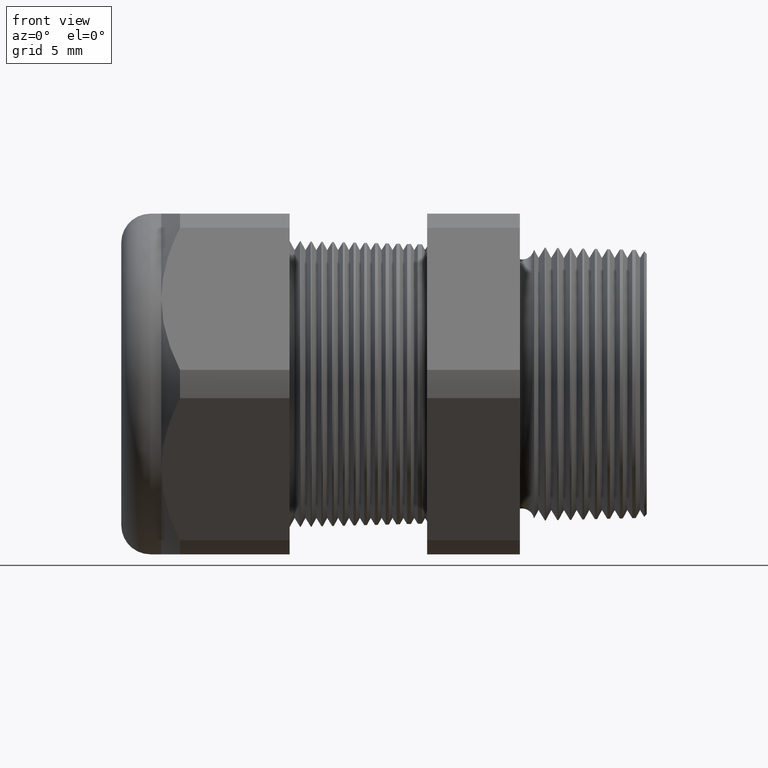
[diagram: clean part render]
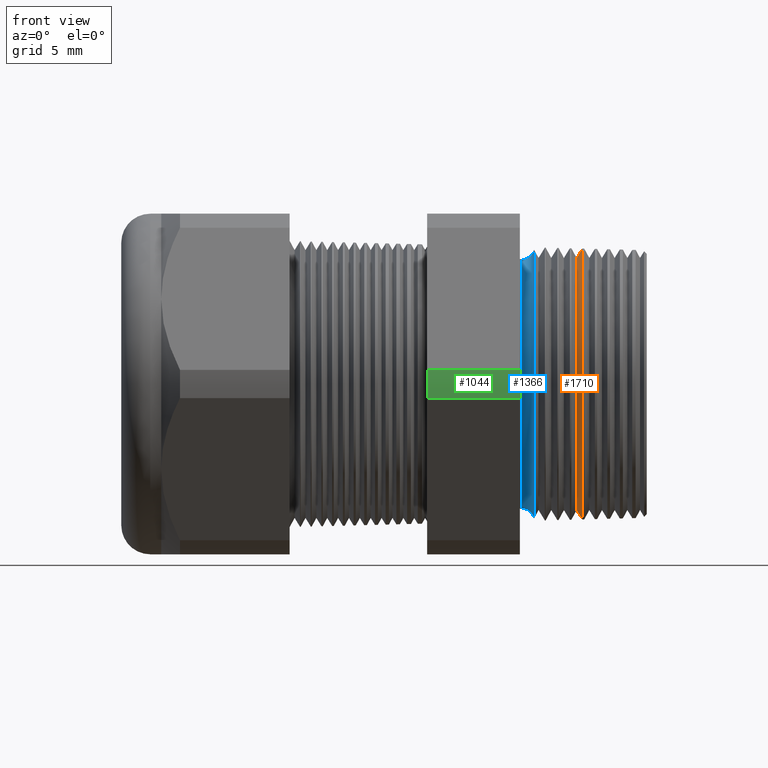
[diagram: same view with three faces highlighted in distinct colors, each labeled with its STEP entity id]
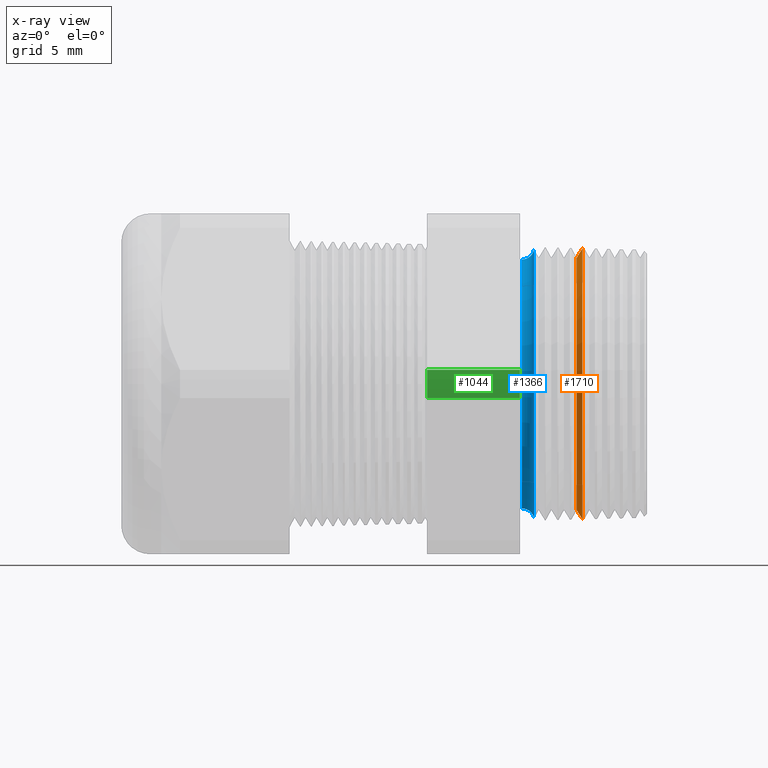
[diagram: x-ray of the same camera — body ghosted, the three highlighted faces saturated]
A machine part, front view with three faces highlighted in distinct colors.
The next image is the same camera in x-ray (body ghosted, the three faces saturated) — at least one of them is partly hidden behind the body in this view.
Their STEP definitions:

[orange] entity #1710 — the highlighted conical surface has half-angle 58.5 deg.
#645 = EDGE_CURVE ( 'NONE', #5212, #5201, #3002, .T. ) ;
#1656 = EDGE_CURVE ( 'NONE', #5144, #5205, #4780, .T. ) ;
#1710 = ADVANCED_FACE ( 'NONE', ( #4844 ), #4843, .T. ) ;
#1711 = EDGE_LOOP ( 'NONE', ( #1712, #1713, #1714, #1715 ) ) ;
#1712 = ORIENTED_EDGE ( 'NONE', *, *, #5224, .F. ) ;
#1713 = ORIENTED_EDGE ( 'NONE', *, *, #1656, .T. ) ;
#1714 = ORIENTED_EDGE ( 'NONE', *, *, #5194, .T. ) ;
#1715 = ORIENTED_EDGE ( 'NONE', *, *, #645, .T. ) ;
#2998 = DIRECTION ( 'NONE',  ( 0.0000000000000000000, 0.0000000000000000000, -1.000000000000000000 ) ) ;
#2999 = DIRECTION ( 'NONE',  ( -1.000000000000000000, 0.0000000000000000000, 0.0000000000000000000 ) ) ;
#3000 = CARTESIAN_POINT ( 'NONE',  ( -0.1375819195166211300, 0.0000000000000000000, 0.0000000000000000000 ) ) ;
#3001 = AXIS2_PLACEMENT_3D ( 'NONE', #3000, #2999, #2998 ) ;
#3002 = CIRCLE ( 'NONE', #3001, 0.3738456731111898200 ) ;
#4777 = DIRECTION ( 'NONE',  ( 0.0000000000000000000, 0.0000000000000000000, -1.000000000000000000 ) ) ;
#4778 = DIRECTION ( 'NONE',  ( 1.000000000000000000, 0.0000000000000000000, 0.0000000000000000000 ) ) ;
#4779 = AXIS2_PLACEMENT_3D ( 'NONE', #4784, #4778, #4777 ) ;
#4780 = CIRCLE ( 'NONE', #4779, 0.3479174816500060800 ) ;
#4784 = CARTESIAN_POINT ( 'NONE',  ( -0.1534707356790751300, 0.0000000000000000000, 0.0000000000000000000 ) ) ;
#4839 = DIRECTION ( 'NONE',  ( 0.0000000000000000000, 0.0000000000000000000, -1.000000000000000000 ) ) ;
#4840 = DIRECTION ( 'NONE',  ( 1.000000000000000000, 0.0000000000000000000, 0.0000000000000000000 ) ) ;
#4841 = AXIS2_PLACEMENT_3D ( 'NONE', #4849, #4840, #4839 ) ;
#4843 = CONICAL_SURFACE ( 'NONE', #4841, 0.3479174816500060800, 1.021017612416698700 ) ;
#4844 = FACE_OUTER_BOUND ( 'NONE', #1711, .T. ) ;
#4849 = CARTESIAN_POINT ( 'NONE',  ( -0.1534707356790751300, 0.0000000000000000000, 0.0000000000000000000 ) ) ;
#4906 = CARTESIAN_POINT ( 'NONE',  ( -0.1534707356790751300, 0.0000000000000000000, 0.3479174816500060800 ) ) ;
#4948 = LINE ( 'NONE', #5007, #5006 ) ;
#4985 = CARTESIAN_POINT ( 'NONE',  ( -0.1534707356790751300, 4.424398919375191800E-017, -0.3479174816500060800 ) ) ;
#4992 = CARTESIAN_POINT ( 'NONE',  ( -0.1375819195166211300, 0.0000000000000000000, 0.3738456731111898200 ) ) ;
#5005 = DIRECTION ( 'NONE',  ( 0.5224985647159352500, 0.0000000000000000000, -0.8526401643541005000 ) ) ;
#5006 = VECTOR ( 'NONE', #5005, 39.37007874015748900 ) ;
#5007 = CARTESIAN_POINT ( 'NONE',  ( -0.1534707356790751300, 0.0000000000000000000, -0.3479174816500060800 ) ) ;
#5036 = CARTESIAN_POINT ( 'NONE',  ( -0.1375819195166211300, 4.578289069507063600E-017, -0.3738456731111898200 ) ) ;
#5054 = DIRECTION ( 'NONE',  ( 0.5224985647159352500, 1.044183048100722500E-016, 0.8526401643541005000 ) ) ;
#5055 = VECTOR ( 'NONE', #5054, 39.37007874015748900 ) ;
#5056 = CARTESIAN_POINT ( 'NONE',  ( -0.1534707356790751300, 4.260760302700879300E-017, 0.3479174816500060800 ) ) ;
#5057 = LINE ( 'NONE', #5056, #5055 ) ;
#5144 = VERTEX_POINT ( 'NONE', #4906 ) ;
#5194 = EDGE_CURVE ( 'NONE', #5205, #5212, #4948, .T. ) ;
#5201 = VERTEX_POINT ( 'NONE', #4992 ) ;
#5205 = VERTEX_POINT ( 'NONE', #4985 ) ;
#5212 = VERTEX_POINT ( 'NONE', #5036 ) ;
#5224 = EDGE_CURVE ( 'NONE', #5144, #5201, #5057, .T. ) ;

[blue] entity #1366 — the highlighted toroidal blend (fillet) surface has major radius 9.6104 mm and minor (blend) radius 0.889 mm.
#1256 = EDGE_CURVE ( 'NONE', #1257, #1258, #4115, .T. ) ;
#1257 = VERTEX_POINT ( 'NONE', #4110 ) ;
#1258 = VERTEX_POINT ( 'NONE', #4109 ) ;
#1269 = VERTEX_POINT ( 'NONE', #4086 ) ;
#1271 = EDGE_CURVE ( 'NONE', #1272, #1269, #4152, .T. ) ;
#1272 = VERTEX_POINT ( 'NONE', #4147 ) ;
#1276 = ORIENTED_EDGE ( 'NONE', *, *, #1256, .F. ) ;
#1277 = ORIENTED_EDGE ( 'NONE', *, *, #1278, .F. ) ;
#1278 = EDGE_CURVE ( 'NONE', #1272, #1257, #4141, .T. ) ;
#1366 = ADVANCED_FACE ( 'NONE', ( #4301 ), #4300, .F. ) ;
#1367 = EDGE_LOOP ( 'NONE', ( #1368, #1369, #1276, #1277 ) ) ;
#1368 = ORIENTED_EDGE ( 'NONE', *, *, #1271, .T. ) ;
#1369 = ORIENTED_EDGE ( 'NONE', *, *, #1370, .T. ) ;
#1370 = EDGE_CURVE ( 'NONE', #1269, #1258, #4294, .T. ) ;
#4086 = CARTESIAN_POINT ( 'NONE',  ( -0.3049999999999999400, 4.204954590622103200E-017, 0.3433605994438361200 ) ) ;
#4109 = CARTESIAN_POINT ( 'NONE',  ( -0.3049999999999999400, 0.0000000000000000000, -0.3433605994438361200 ) ) ;
#4110 = CARTESIAN_POINT ( 'NONE',  ( -0.2708463023710456800, 4.539893538562447500E-017, -0.3707104400814421600 ) ) ;
#4111 = DIRECTION ( 'NONE',  ( 0.0000000000000000000, 0.0000000000000000000, -1.000000000000000000 ) ) ;
#4112 = DIRECTION ( 'NONE',  ( 0.0000000000000000000, -1.000000000000000000, 0.0000000000000000000 ) ) ;
#4113 = CARTESIAN_POINT ( 'NONE',  ( -0.3049999999999999400, 0.0000000000000000000, -0.3783605994438361000 ) ) ;
#4114 = AXIS2_PLACEMENT_3D ( 'NONE', #4113, #4112, #4111 ) ;
#4115 = CIRCLE ( 'NONE', #4114, 0.03499999999999996900 ) ;
#4137 = DIRECTION ( 'NONE',  ( 0.0000000000000000000, 0.0000000000000000000, 1.000000000000000000 ) ) ;
#4138 = DIRECTION ( 'NONE',  ( 1.000000000000000000, 0.0000000000000000000, 0.0000000000000000000 ) ) ;
#4139 = CARTESIAN_POINT ( 'NONE',  ( -0.2708463023710456800, 0.0000000000000000000, 0.0000000000000000000 ) ) ;
#4140 = AXIS2_PLACEMENT_3D ( 'NONE', #4139, #4138, #4137 ) ;
#4141 = CIRCLE ( 'NONE', #4140, 0.3707104400814421600 ) ;
#4147 = CARTESIAN_POINT ( 'NONE',  ( -0.2708463023710456800, 0.0000000000000000000, 0.3707104400814421600 ) ) ;
#4148 = DIRECTION ( 'NONE',  ( 0.0000000000000000000, 1.224646799147352700E-016, 1.000000000000000000 ) ) ;
#4149 = DIRECTION ( 'NONE',  ( 0.0000000000000000000, 1.000000000000000000, -1.224646799147353200E-016 ) ) ;
#4150 = CARTESIAN_POINT ( 'NONE',  ( -0.3049999999999999400, 4.633580970323677100E-017, 0.3783605994438361000 ) ) ;
#4151 = AXIS2_PLACEMENT_3D ( 'NONE', #4150, #4149, #4148 ) ;
#4152 = CIRCLE ( 'NONE', #4151, 0.03499999999999996900 ) ;
#4291 = DIRECTION ( 'NONE',  ( 0.0000000000000000000, 0.0000000000000000000, -1.000000000000000000 ) ) ;
#4292 = DIRECTION ( 'NONE',  ( 1.000000000000000000, 0.0000000000000000000, 0.0000000000000000000 ) ) ;
#4293 = AXIS2_PLACEMENT_3D ( 'NONE', #4299, #4292, #4291 ) ;
#4294 = CIRCLE ( 'NONE', #4293, 0.3433605994438361200 ) ;
#4295 = DIRECTION ( 'NONE',  ( 0.0000000000000000000, 0.0000000000000000000, -1.000000000000000000 ) ) ;
#4296 = DIRECTION ( 'NONE',  ( 1.000000000000000000, 0.0000000000000000000, 0.0000000000000000000 ) ) ;
#4297 = CARTESIAN_POINT ( 'NONE',  ( -0.3049999999999999400, 0.0000000000000000000, 0.0000000000000000000 ) ) ;
#4298 = AXIS2_PLACEMENT_3D ( 'NONE', #4297, #4296, #4295 ) ;
#4299 = CARTESIAN_POINT ( 'NONE',  ( -0.3049999999999999400, 0.0000000000000000000, 0.0000000000000000000 ) ) ;
#4300 = TOROIDAL_SURFACE ( 'NONE', #4298, 0.3783605994438361000, 0.03499999999999994800 ) ;
#4301 = FACE_OUTER_BOUND ( 'NONE', #1367, .T. ) ;

[green] entity #1044 — the highlighted cylindrical surface (partial cylindrical patch) has radius 13.2512 mm, axis along (-1, 0, 0).
#931 = VERTEX_POINT ( 'NONE', #3607 ) ;
#933 = EDGE_CURVE ( 'NONE', #931, #934, #3605, .T. ) ;
#934 = VERTEX_POINT ( 'NONE', #3665 ) ;
#985 = EDGE_CURVE ( 'NONE', #934, #986, #3709, .T. ) ;
#986 = VERTEX_POINT ( 'NONE', #3705 ) ;
#1044 = ADVANCED_FACE ( 'NONE', ( #3800 ), #3799, .T. ) ;
#1045 = EDGE_LOOP ( 'NONE', ( #1046, #1047, #1048, #1051 ) ) ;
#1046 = ORIENTED_EDGE ( 'NONE', *, *, #985, .F. ) ;
#1047 = ORIENTED_EDGE ( 'NONE', *, *, #933, .F. ) ;
#1048 = ORIENTED_EDGE ( 'NONE', *, *, #1049, .T. ) ;
#1049 = EDGE_CURVE ( 'NONE', #931, #1050, #3856, .T. ) ;
#1050 = VERTEX_POINT ( 'NONE', #3852 ) ;
#1051 = ORIENTED_EDGE ( 'NONE', *, *, #1052, .F. ) ;
#1052 = EDGE_CURVE ( 'NONE', #986, #1050, #3851, .T. ) ;
#2864 = DIRECTION ( 'NONE',  ( 0.0000000000000000000, 0.0000000000000000000, -1.000000000000000000 ) ) ;
#3602 = DIRECTION ( 'NONE',  ( 1.000000000000000000, 0.0000000000000000000, 0.0000000000000000000 ) ) ;
#3603 = CARTESIAN_POINT ( 'NONE',  ( -0.3100000000000000000, 0.0000000000000000000, 0.0000000000000000000 ) ) ;
#3604 = AXIS2_PLACEMENT_3D ( 'NONE', #3603, #3602, #2864 ) ;
#3605 = CIRCLE ( 'NONE', #3604, 0.5217000000000000500 ) ;
#3607 = CARTESIAN_POINT ( 'NONE',  ( -0.3100000000000000000, -0.5202473208008777700, 0.03890520787129464500 ) ) ;
#3665 = CARTESIAN_POINT ( 'NONE',  ( -0.3100000000000000000, -0.5202473208008777700, -0.03890520787129494300 ) ) ;
#3705 = CARTESIAN_POINT ( 'NONE',  ( -0.5659055118110235500, -0.5202473208008777700, -0.03890520787129494300 ) ) ;
#3706 = DIRECTION ( 'NONE',  ( -1.000000000000000000, 0.0000000000000000000, 0.0000000000000000000 ) ) ;
#3707 = VECTOR ( 'NONE', #3706, 39.37007874015748100 ) ;
#3708 = CARTESIAN_POINT ( 'NONE',  ( 0.04000000000000011900, -0.5202473208008777700, -0.03890520787129494300 ) ) ;
#3709 = LINE ( 'NONE', #3708, #3707 ) ;
#3795 = DIRECTION ( 'NONE',  ( 0.0000000000000000000, 0.0000000000000000000, 1.000000000000000000 ) ) ;
#3796 = DIRECTION ( 'NONE',  ( -1.000000000000000000, 0.0000000000000000000, 0.0000000000000000000 ) ) ;
#3797 = CARTESIAN_POINT ( 'NONE',  ( 0.04000000000000011900, 0.0000000000000000000, 0.0000000000000000000 ) ) ;
#3798 = AXIS2_PLACEMENT_3D ( 'NONE', #3797, #3796, #3795 ) ;
#3799 = CYLINDRICAL_SURFACE ( 'NONE', #3798, 0.5217000000000000500 ) ;
#3800 = FACE_OUTER_BOUND ( 'NONE', #1045, .T. ) ;
#3847 = DIRECTION ( 'NONE',  ( 0.0000000000000000000, 0.0000000000000000000, 1.000000000000000000 ) ) ;
#3848 = DIRECTION ( 'NONE',  ( -1.000000000000000000, 0.0000000000000000000, 0.0000000000000000000 ) ) ;
#3849 = CARTESIAN_POINT ( 'NONE',  ( -0.5659055118110235500, 0.0000000000000000000, 0.0000000000000000000 ) ) ;
#3850 = AXIS2_PLACEMENT_3D ( 'NONE', #3849, #3848, #3847 ) ;
#3851 = CIRCLE ( 'NONE', #3850, 0.5217000000000000500 ) ;
#3852 = CARTESIAN_POINT ( 'NONE',  ( -0.5659055118110235500, -0.5202473208008777700, 0.03890520787129464500 ) ) ;
#3853 = DIRECTION ( 'NONE',  ( -1.000000000000000000, 0.0000000000000000000, 0.0000000000000000000 ) ) ;
#3854 = VECTOR ( 'NONE', #3853, 39.37007874015748100 ) ;
#3855 = CARTESIAN_POINT ( 'NONE',  ( 0.04000000000000011900, -0.5202473208008777700, 0.03890520787129464500 ) ) ;
#3856 = LINE ( 'NONE', #3855, #3854 ) ;